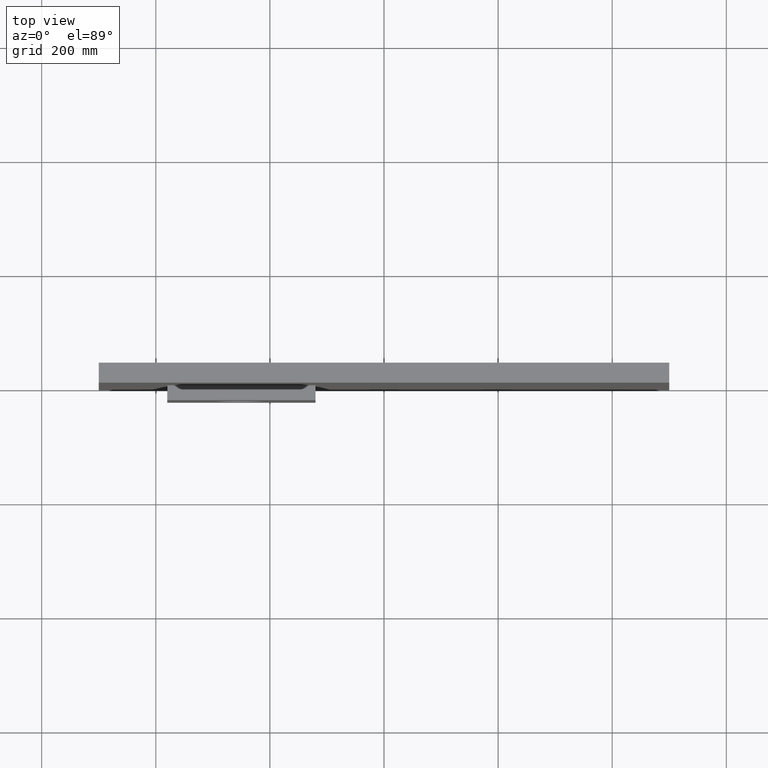
[diagram: clean part render]
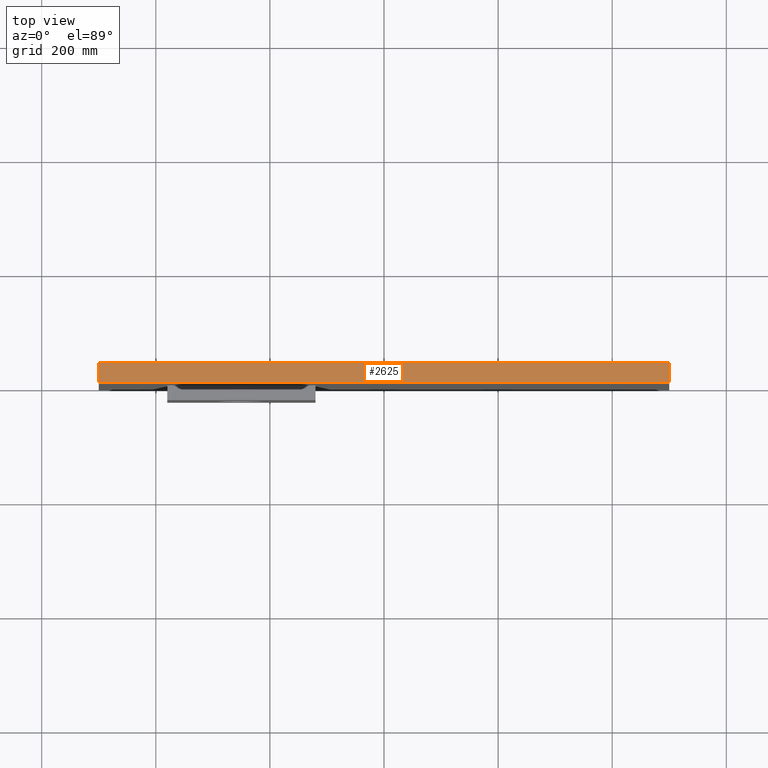
[diagram: same view with one face highlighted and labeled with its STEP entity id]
A machine part, top view. The second image highlights one B-rep face of the part: STEP entity #2625.
In plain terms, the highlighted planar face has unit normal (0, 0, -1).
Its self-contained STEP definition (entity closure, byte-faithful):
#96 = PLANE ( 'NONE',  #665 ) ;
#153 = DIRECTION ( 'NONE',  ( 1.000000000000000000, 0.0000000000000000000, 0.0000000000000000000 ) ) ;
#279 = CARTESIAN_POINT ( 'NONE',  ( -500.0000000000001100, 0.0000000000000000000, 399.9999999999998900 ) ) ;
#326 = VERTEX_POINT ( 'NONE', #3090 ) ;
#371 = CARTESIAN_POINT ( 'NONE',  ( -500.0000000000001100, 0.0000000000000000000, 399.9999999999998900 ) ) ;
#446 = CARTESIAN_POINT ( 'NONE',  ( 499.9999999999998900, 35.00000000000000000, 399.9999999999998900 ) ) ;
#665 = AXIS2_PLACEMENT_3D ( 'NONE', #1900, #1639, #1230 ) ;
#832 = EDGE_CURVE ( 'NONE', #2752, #2488, #1303, .T. ) ;
#851 = ORIENTED_EDGE ( 'NONE', *, *, #1721, .F. ) ;
#1068 = CARTESIAN_POINT ( 'NONE',  ( -500.0000000000001100, 35.00000000000000000, 399.9999999999998900 ) ) ;
#1106 = DIRECTION ( 'NONE',  ( -0.0000000000000000000, -1.000000000000000000, -0.0000000000000000000 ) ) ;
#1230 = DIRECTION ( 'NONE',  ( -1.000000000000000000, 0.0000000000000000000, -0.0000000000000000000 ) ) ;
#1303 = LINE ( 'NONE', #3035, #2597 ) ;
#1341 = VERTEX_POINT ( 'NONE', #279 ) ;
#1450 = CARTESIAN_POINT ( 'NONE',  ( -500.0000000000001100, 35.00000000000000000, 399.9999999999998900 ) ) ;
#1639 = DIRECTION ( 'NONE',  ( 0.0000000000000000000, 0.0000000000000000000, -1.000000000000000000 ) ) ;
#1721 = EDGE_CURVE ( 'NONE', #2488, #326, #3000, .T. ) ;
#1733 = LINE ( 'NONE', #1450, #1819 ) ;
#1819 = VECTOR ( 'NONE', #2728, 1000.000000000000000 ) ;
#1896 = DIRECTION ( 'NONE',  ( 1.000000000000000000, 0.0000000000000000000, 0.0000000000000000000 ) ) ;
#1900 = CARTESIAN_POINT ( 'NONE',  ( -500.0000000000001100, 35.00000000000000000, 399.9999999999998900 ) ) ;
#2154 = LINE ( 'NONE', #371, #2185 ) ;
#2185 = VECTOR ( 'NONE', #153, 1000.000000000000000 ) ;
#2187 = EDGE_CURVE ( 'NONE', #1341, #326, #2154, .T. ) ;
#2267 = CARTESIAN_POINT ( 'NONE',  ( 499.9999999999998900, 35.00000000000000000, 399.9999999999998900 ) ) ;
#2354 = EDGE_CURVE ( 'NONE', #2752, #1341, #1733, .T. ) ;
#2405 = ORIENTED_EDGE ( 'NONE', *, *, #832, .F. ) ;
#2488 = VERTEX_POINT ( 'NONE', #2267 ) ;
#2570 = ORIENTED_EDGE ( 'NONE', *, *, #2187, .T. ) ;
#2597 = VECTOR ( 'NONE', #1896, 1000.000000000000000 ) ;
#2625 = ADVANCED_FACE ( 'NONE', ( #2986 ), #96, .F. ) ;
#2728 = DIRECTION ( 'NONE',  ( -0.0000000000000000000, -1.000000000000000000, -0.0000000000000000000 ) ) ;
#2752 = VERTEX_POINT ( 'NONE', #1068 ) ;
#2986 = FACE_OUTER_BOUND ( 'NONE', #3282, .T. ) ;
#3000 = LINE ( 'NONE', #446, #3154 ) ;
#3035 = CARTESIAN_POINT ( 'NONE',  ( -500.0000000000001100, 35.00000000000000000, 399.9999999999998900 ) ) ;
#3047 = ORIENTED_EDGE ( 'NONE', *, *, #2354, .T. ) ;
#3090 = CARTESIAN_POINT ( 'NONE',  ( 499.9999999999998900, 0.0000000000000000000, 399.9999999999998900 ) ) ;
#3154 = VECTOR ( 'NONE', #1106, 1000.000000000000000 ) ;
#3282 = EDGE_LOOP ( 'NONE', ( #2570, #851, #2405, #3047 ) ) ;